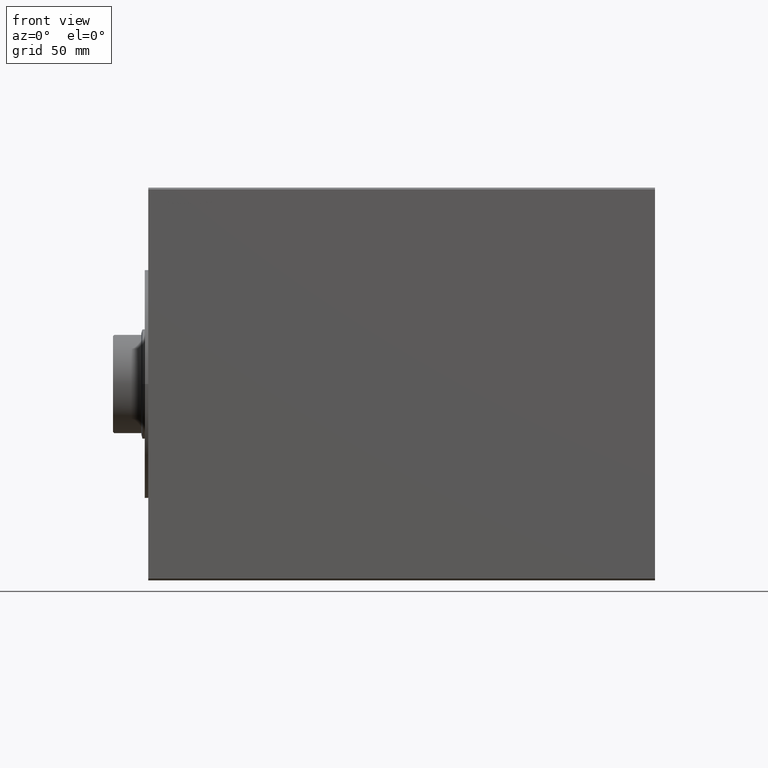
[diagram: clean part render]
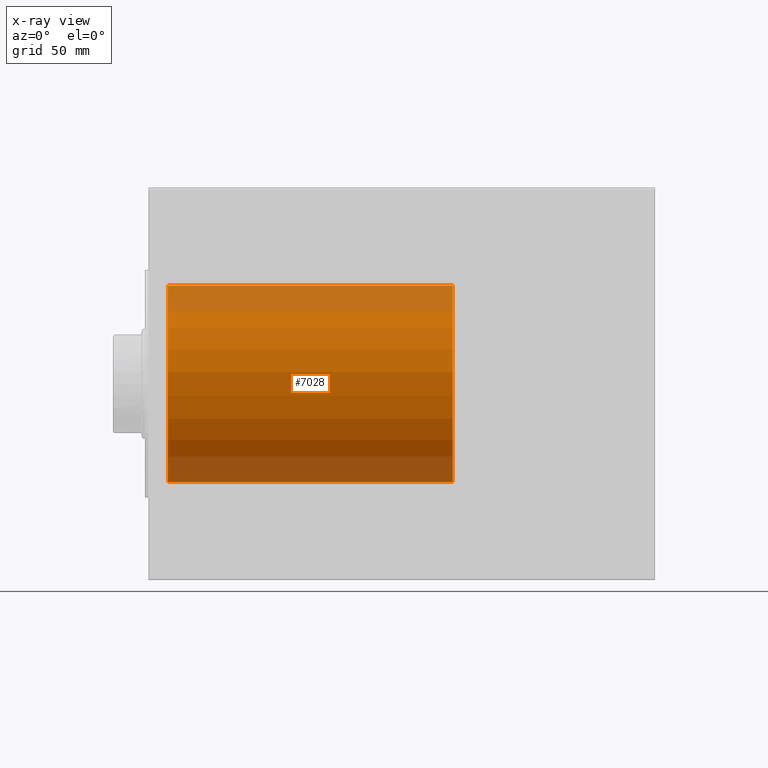
[diagram: x-ray — body ghosted, one internal face saturated and labeled with its STEP entity id]
A machine part, front view, then the same camera in x-ray: the body is ghosted and one INTERNAL B-rep face — a face not visible from any outside direction — is saturated and labeled: STEP entity #7028.
In plain terms, the highlighted cylindrical surface (partial cylindrical patch) has radius 50 mm, axis along (-1, -0, -0).
Its self-contained STEP definition (entity closure, byte-faithful):
#305 = LINE ( 'NONE', #18014, #16086 ) ;
#614 = CIRCLE ( 'NONE', #6326, 50.00000000000000000 ) ;
#4743 = ORIENTED_EDGE ( 'NONE', *, *, #33104, .F. ) ;
#6170 = EDGE_CURVE ( 'NONE', #21352, #6715, #15867, .T. ) ;
#6326 = AXIS2_PLACEMENT_3D ( 'NONE', #23651, #44319, #10815 ) ;
#6715 = VERTEX_POINT ( 'NONE', #40210 ) ;
#6821 = DIRECTION ( 'NONE',  ( -1.000000000000000000, 0.000000000000000000, 0.000000000000000000 ) ) ;
#7028 = ADVANCED_FACE ( 'NONE', ( #23793 ), #34134, .F. ) ;
#7373 = DIRECTION ( 'NONE',  ( -1.000000000000000000, -0.000000000000000000, -0.000000000000000000 ) ) ;
#8531 = VECTOR ( 'NONE', #39469, 1000.000000000000000 ) ;
#9206 = CIRCLE ( 'NONE', #13502, 50.00000000000000000 ) ;
#10720 = CARTESIAN_POINT ( 'NONE',  ( 155.0000000000000000, 6.123233995736766085E-15, -50.00000000000000000 ) ) ;
#10815 = DIRECTION ( 'NONE',  ( 0.000000000000000000, 0.000000000000000000, 1.000000000000000000 ) ) ;
#13502 = AXIS2_PLACEMENT_3D ( 'NONE', #24345, #6821, #34675 ) ;
#14298 = AXIS2_PLACEMENT_3D ( 'NONE', #41318, #7373, #34569 ) ;
#15867 = LINE ( 'NONE', #36095, #8531 ) ;
#16086 = VECTOR ( 'NONE', #41395, 1000.000000000000000 ) ;
#16624 = EDGE_LOOP ( 'NONE', ( #37615, #35073, #26736, #4743 ) ) ;
#16703 = VERTEX_POINT ( 'NONE', #24214 ) ;
#18014 = CARTESIAN_POINT ( 'NONE',  ( 155.0000000000000000, 0.000000000000000000, 50.00000000000000000 ) ) ;
#20516 = EDGE_CURVE ( 'NONE', #6715, #16703, #614, .T. ) ;
#21352 = VERTEX_POINT ( 'NONE', #10720 ) ;
#23651 = CARTESIAN_POINT ( 'NONE',  ( 10.00000000000000000, 0.000000000000000000, 0.000000000000000000 ) ) ;
#23793 = FACE_OUTER_BOUND ( 'NONE', #16624, .T. ) ;
#24214 = CARTESIAN_POINT ( 'NONE',  ( 10.00000000000000000, 0.000000000000000000, 50.00000000000000000 ) ) ;
#24345 = CARTESIAN_POINT ( 'NONE',  ( 155.0000000000000000, 0.000000000000000000, 0.000000000000000000 ) ) ;
#24848 = VERTEX_POINT ( 'NONE', #43107 ) ;
#26736 = ORIENTED_EDGE ( 'NONE', *, *, #20516, .T. ) ;
#29081 = EDGE_CURVE ( 'NONE', #21352, #24848, #9206, .T. ) ;
#33104 = EDGE_CURVE ( 'NONE', #24848, #16703, #305, .T. ) ;
#34134 = CYLINDRICAL_SURFACE ( 'NONE', #14298, 50.00000000000000000 ) ;
#34569 = DIRECTION ( 'NONE',  ( 0.000000000000000000, 0.000000000000000000, 1.000000000000000000 ) ) ;
#34675 = DIRECTION ( 'NONE',  ( 0.000000000000000000, 0.000000000000000000, 1.000000000000000000 ) ) ;
#35073 = ORIENTED_EDGE ( 'NONE', *, *, #6170, .T. ) ;
#36095 = CARTESIAN_POINT ( 'NONE',  ( 155.0000000000000000, 6.123233995736766085E-15, -50.00000000000000000 ) ) ;
#37615 = ORIENTED_EDGE ( 'NONE', *, *, #29081, .F. ) ;
#39469 = DIRECTION ( 'NONE',  ( -1.000000000000000000, -0.000000000000000000, -0.000000000000000000 ) ) ;
#40210 = CARTESIAN_POINT ( 'NONE',  ( 10.00000000000000000, 6.123233995736766085E-15, -50.00000000000000000 ) ) ;
#41318 = CARTESIAN_POINT ( 'NONE',  ( 155.0000000000000000, 0.000000000000000000, 0.000000000000000000 ) ) ;
#41395 = DIRECTION ( 'NONE',  ( -1.000000000000000000, -0.000000000000000000, -0.000000000000000000 ) ) ;
#43107 = CARTESIAN_POINT ( 'NONE',  ( 155.0000000000000000, 0.000000000000000000, 50.00000000000000000 ) ) ;
#44319 = DIRECTION ( 'NONE',  ( -1.000000000000000000, 0.000000000000000000, 0.000000000000000000 ) ) ;